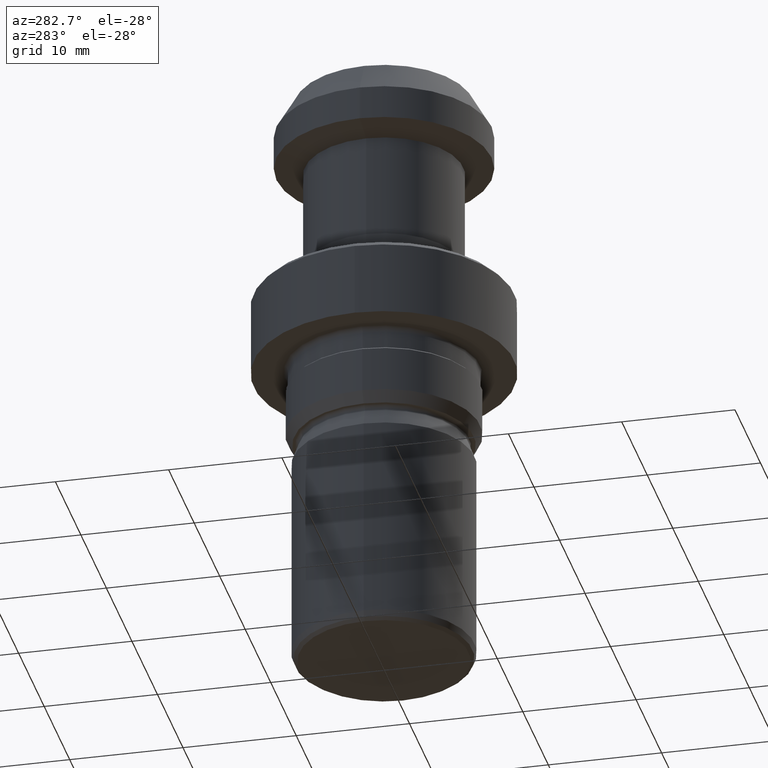
[diagram: clean part render]
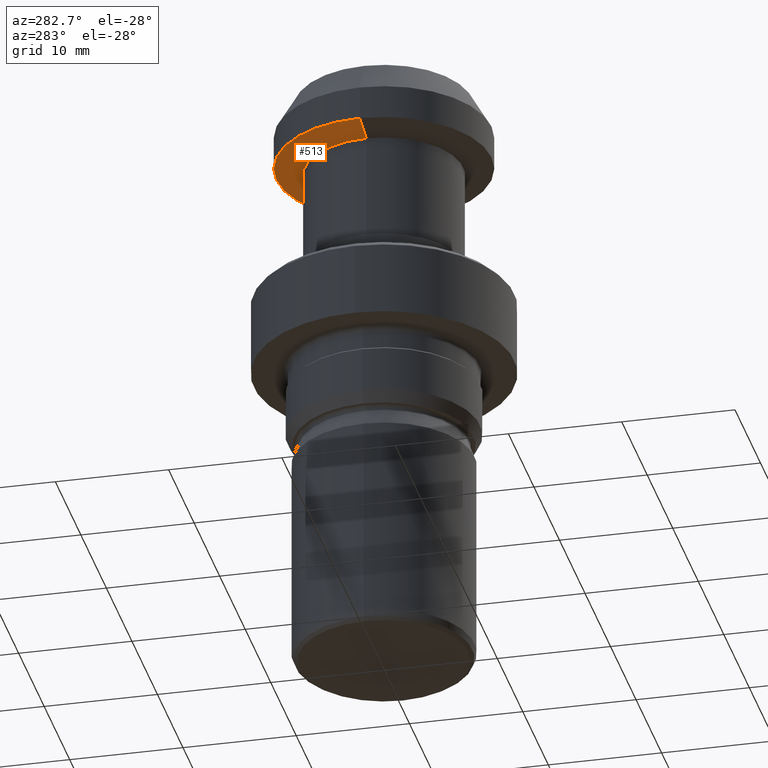
[diagram: same view with one face highlighted and labeled with its STEP entity id]
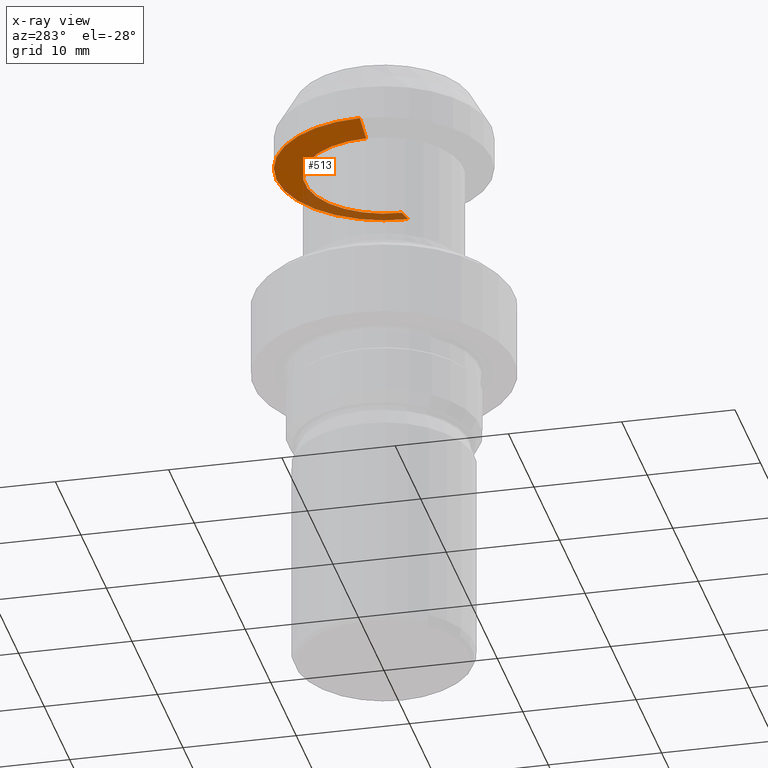
[diagram: x-ray of the same camera — body ghosted, the highlighted face saturated]
A machine part, auxiliary view. The second image highlights one B-rep face of the part: STEP entity #513.
The next image is the same camera in x-ray: the body ghosted, the highlighted face saturated — about 23% of this face is hidden behind the body in this view.
In plain terms, the highlighted conical surface has half-angle 75 deg.
Its self-contained STEP definition (entity closure, byte-faithful):
#6 = CARTESIAN_POINT ( 'NONE',  ( 0.0000000000000000000, 0.0000000000000000000, -6.669872981077809900 ) ) ;
#13 = DIRECTION ( 'NONE',  ( 1.000000000000000000, 0.0000000000000000000, 0.0000000000000000000 ) ) ;
#44 = EDGE_CURVE ( 'NONE', #1112, #736, #219, .T. ) ;
#169 = EDGE_CURVE ( 'NONE', #700, #514, #264, .T. ) ;
#178 = DIRECTION ( 'NONE',  ( -0.0000000000000000000, -0.0000000000000000000, 1.000000000000000000 ) ) ;
#219 = CIRCLE ( 'NONE', #836, 9.500000000000000000 ) ;
#259 = CARTESIAN_POINT ( 'NONE',  ( 0.0000000000000000000, 0.0000000000000000000, -6.669872981077809900 ) ) ;
#264 = CIRCLE ( 'NONE', #1126, 7.000000000000000000 ) ;
#335 = ORIENTED_EDGE ( 'NONE', *, *, #1043, .F. ) ;
#396 = CARTESIAN_POINT ( 'NONE',  ( -7.000000000000000900, 8.572527594031474200E-016, -6.669872981077809900 ) ) ;
#415 = DIRECTION ( 'NONE',  ( 0.9659258262890679800, 0.0000000000000000000, 0.2588190451025217900 ) ) ;
#450 = ORIENTED_EDGE ( 'NONE', *, *, #780, .T. ) ;
#467 = AXIS2_PLACEMENT_3D ( 'NONE', #6, #822, #13 ) ;
#470 = VECTOR ( 'NONE', #1121, 1000.000000000000000 ) ;
#475 = CARTESIAN_POINT ( 'NONE',  ( 7.000000000000000000, 0.0000000000000000000, -6.669872981077809900 ) ) ;
#513 = ADVANCED_FACE ( 'NONE', ( #983 ), #671, .T. ) ;
#514 = VERTEX_POINT ( 'NONE', #396 ) ;
#538 = CARTESIAN_POINT ( 'NONE',  ( 0.0000000000000000000, 0.0000000000000000000, -6.000000000000000000 ) ) ;
#596 = DIRECTION ( 'NONE',  ( 1.000000000000000000, 0.0000000000000000000, 0.0000000000000000000 ) ) ;
#616 = DIRECTION ( 'NONE',  ( 1.000000000000000000, 0.0000000000000000000, 0.0000000000000000000 ) ) ;
#671 = CONICAL_SURFACE ( 'NONE', #467, 7.000000000000000000, 1.308996938995746100 ) ;
#686 = LINE ( 'NONE', #751, #1118 ) ;
#693 = ORIENTED_EDGE ( 'NONE', *, *, #44, .F. ) ;
#700 = VERTEX_POINT ( 'NONE', #475 ) ;
#736 = VERTEX_POINT ( 'NONE', #816 ) ;
#751 = CARTESIAN_POINT ( 'NONE',  ( 7.000000000000000000, 0.0000000000000000000, -6.669872981077809900 ) ) ;
#770 = EDGE_LOOP ( 'NONE', ( #790, #450, #693, #335 ) ) ;
#780 = EDGE_CURVE ( 'NONE', #514, #736, #1145, .T. ) ;
#790 = ORIENTED_EDGE ( 'NONE', *, *, #169, .T. ) ;
#816 = CARTESIAN_POINT ( 'NONE',  ( -9.500000000000000000, 1.163414459189985500E-015, -6.000000000000000000 ) ) ;
#822 = DIRECTION ( 'NONE',  ( -0.0000000000000000000, -0.0000000000000000000, 1.000000000000000000 ) ) ;
#836 = AXIS2_PLACEMENT_3D ( 'NONE', #538, #178, #616 ) ;
#965 = CARTESIAN_POINT ( 'NONE',  ( 9.500000000000000000, 0.0000000000000000000, -6.000000000000000000 ) ) ;
#983 = FACE_OUTER_BOUND ( 'NONE', #770, .T. ) ;
#1042 = CARTESIAN_POINT ( 'NONE',  ( -7.000000000000000000, 8.572527594031473200E-016, -6.669872981077809900 ) ) ;
#1043 = EDGE_CURVE ( 'NONE', #700, #1112, #686, .T. ) ;
#1112 = VERTEX_POINT ( 'NONE', #965 ) ;
#1118 = VECTOR ( 'NONE', #415, 1000.000000000000000 ) ;
#1121 = DIRECTION ( 'NONE',  ( -0.9659258262890679800, 1.182917971378669300E-016, 0.2588190451025217900 ) ) ;
#1126 = AXIS2_PLACEMENT_3D ( 'NONE', #259, #1147, #596 ) ;
#1145 = LINE ( 'NONE', #1042, #470 ) ;
#1147 = DIRECTION ( 'NONE',  ( -0.0000000000000000000, -0.0000000000000000000, 1.000000000000000000 ) ) ;